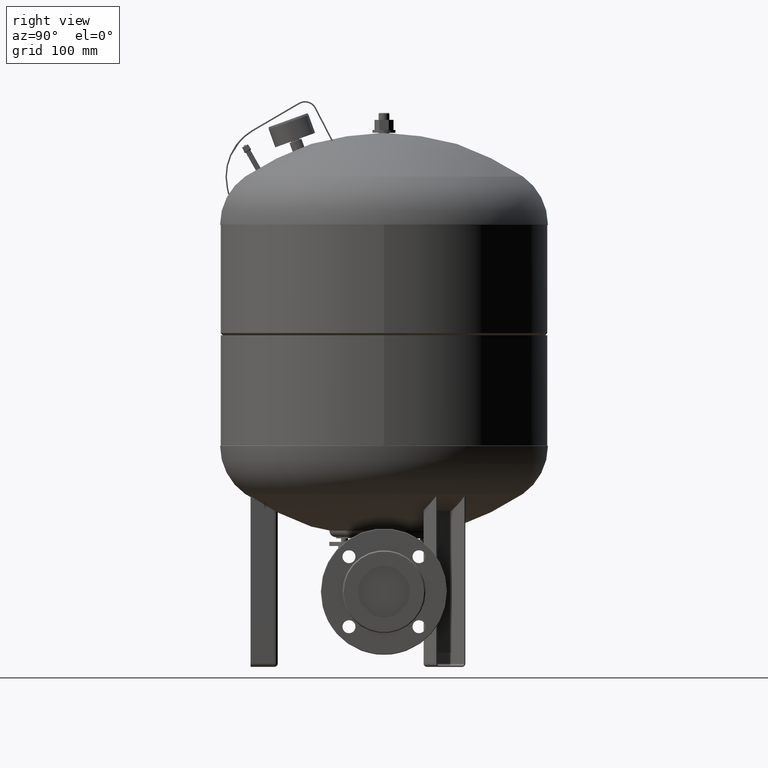
[diagram: clean part render]
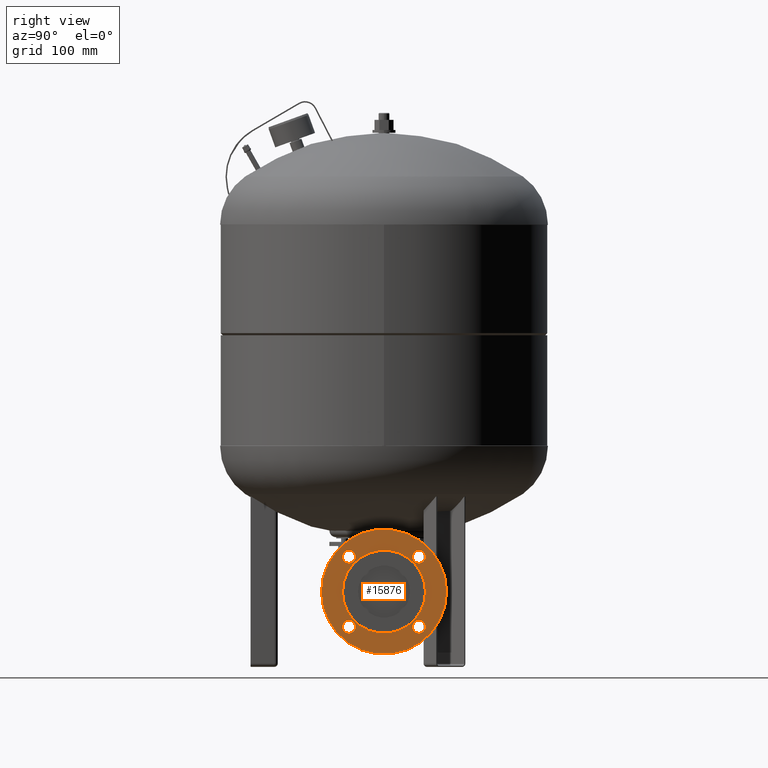
[diagram: same view with one face highlighted and labeled with its STEP entity id]
A machine part, right view. The second image highlights one B-rep face of the part: STEP entity #15876.
In plain terms, the highlighted planar face has unit normal (1, 0, 0).
Its self-contained STEP definition (entity closure, byte-faithful):
#15376=CARTESIAN_POINT('',(212.0,-60.732050807568875,110.0));
#15377=VERTEX_POINT('',#15376);
#15386=CARTESIAN_POINT('',(212.0,60.732050807568882,109.999999999999990));
#15387=VERTEX_POINT('',#15386);
#15388=CARTESIAN_POINT('',(212.0,-5.510729E-016,110.0));
#15389=DIRECTION('',(-1.0,0.0,0.0));
#15390=DIRECTION('',(0.0,-1.0,0.0));
#15391=AXIS2_PLACEMENT_3D('',#15388,#15389,#15390);
#15392=CIRCLE('',#15391,60.732050807568875);
#15393=EDGE_CURVE('',#15387,#15377,#15392,.T.);
#15420=CARTESIAN_POINT('',(212.000000000000030,-60.765241636024662,161.265241636024710));
#15421=VERTEX_POINT('',#15420);
#15437=CARTESIAN_POINT('',(212.000000000000030,-41.765241636024662,161.265241636024800));
#15438=VERTEX_POINT('',#15437);
#15445=CARTESIAN_POINT('',(212.000000000000030,-51.265241636024662,161.265241636024710));
#15446=DIRECTION('',(-1.0,0.0,0.0));
#15447=DIRECTION('',(0.0,-1.0,0.0));
#15448=AXIS2_PLACEMENT_3D('',#15445,#15446,#15447);
#15449=CIRCLE('',#15448,9.500000000000000);
#15450=EDGE_CURVE('',#15421,#15438,#15449,.T.);
#15462=CARTESIAN_POINT('',(212.0,-60.765241636024754,58.734758363975367));
#15463=VERTEX_POINT('',#15462);
#15479=CARTESIAN_POINT('',(212.0,-41.765241636024754,58.734758363975430));
#15480=VERTEX_POINT('',#15479);
#15487=CARTESIAN_POINT('',(212.0,-51.265241636024754,58.734758363975367));
#15488=DIRECTION('',(-1.0,0.0,0.0));
#15489=DIRECTION('',(0.0,-1.0,0.0));
#15490=AXIS2_PLACEMENT_3D('',#15487,#15488,#15489);
#15491=CIRCLE('',#15490,9.500000000000000);
#15492=EDGE_CURVE('',#15463,#15480,#15491,.T.);
#15504=CARTESIAN_POINT('',(211.999999999999970,41.765241636024690,58.734758363975303));
#15505=VERTEX_POINT('',#15504);
#15521=CARTESIAN_POINT('',(211.999999999999970,60.765241636024690,58.734758363975367));
#15522=VERTEX_POINT('',#15521);
#15529=CARTESIAN_POINT('',(211.999999999999970,51.265241636024690,58.734758363975303));
#15530=DIRECTION('',(-1.0,0.0,0.0));
#15531=DIRECTION('',(0.0,-1.0,0.0));
#15532=AXIS2_PLACEMENT_3D('',#15529,#15530,#15531);
#15533=CIRCLE('',#15532,9.500000000000000);
#15534=EDGE_CURVE('',#15505,#15522,#15533,.T.);
#15546=CARTESIAN_POINT('',(212.0,41.765241636024712,161.265241636024680));
#15547=VERTEX_POINT('',#15546);
#15563=CARTESIAN_POINT('',(212.0,60.765241636024712,161.265241636024740));
#15564=VERTEX_POINT('',#15563);
#15571=CARTESIAN_POINT('',(212.0,51.265241636024712,161.265241636024680));
#15572=DIRECTION('',(-1.0,0.0,0.0));
#15573=DIRECTION('',(0.0,-1.0,0.0));
#15574=AXIS2_PLACEMENT_3D('',#15571,#15572,#15573);
#15575=CIRCLE('',#15574,9.500000000000000);
#15576=EDGE_CURVE('',#15547,#15564,#15575,.T.);
#15588=CARTESIAN_POINT('',(211.999999999999970,91.500000000000000,110.0));
#15589=VERTEX_POINT('',#15588);
#15606=CARTESIAN_POINT('',(212.000000000000030,-91.500000000000000,110.0));
#15607=VERTEX_POINT('',#15606);
#15615=CARTESIAN_POINT('',(212.0,-5.510729E-016,110.0));
#15616=DIRECTION('',(-1.0,0.0,0.0));
#15617=DIRECTION('',(0.0,1.0,0.0));
#15618=AXIS2_PLACEMENT_3D('',#15615,#15616,#15617);
#15619=CIRCLE('',#15618,91.500000000000000);
#15620=EDGE_CURVE('',#15607,#15589,#15619,.T.);
#15805=CARTESIAN_POINT('',(212.0,-5.510729E-016,110.0));
#15806=DIRECTION('',(-1.0,0.0,0.0));
#15807=DIRECTION('',(0.0,1.0,0.0));
#15808=AXIS2_PLACEMENT_3D('',#15805,#15806,#15807);
#15809=CIRCLE('',#15808,91.500000000000000);
#15810=EDGE_CURVE('',#15589,#15607,#15809,.T.);
#15817=CARTESIAN_POINT('',(212.000000000000030,-92.500000000000000,110.0));
#15818=DIRECTION('',(1.0,0.0,0.0));
#15819=DIRECTION('',(0.0,-1.0,0.0));
#15820=AXIS2_PLACEMENT_3D('',#15817,#15818,#15819);
#15821=PLANE('',#15820);
#15822=ORIENTED_EDGE('',*,*,#15620,.F.);
#15823=ORIENTED_EDGE('',*,*,#15810,.F.);
#15824=EDGE_LOOP('',(#15822,#15823));
#15825=FACE_OUTER_BOUND('',#15824,.T.);
#15826=CARTESIAN_POINT('',(212.0,-5.510729E-016,110.0));
#15827=DIRECTION('',(-1.0,0.0,0.0));
#15828=DIRECTION('',(0.0,-1.0,0.0));
#15829=AXIS2_PLACEMENT_3D('',#15826,#15827,#15828);
#15830=CIRCLE('',#15829,60.732050807568875);
#15831=EDGE_CURVE('',#15377,#15387,#15830,.T.);
#15832=ORIENTED_EDGE('',*,*,#15831,.T.);
#15833=ORIENTED_EDGE('',*,*,#15393,.T.);
#15834=EDGE_LOOP('',(#15832,#15833));
#15835=FACE_BOUND('',#15834,.T.);
#15836=CARTESIAN_POINT('',(212.000000000000030,-51.265241636024662,161.265241636024710));
#15837=DIRECTION('',(-1.0,0.0,0.0));
#15838=DIRECTION('',(0.0,-1.0,0.0));
#15839=AXIS2_PLACEMENT_3D('',#15836,#15837,#15838);
#15840=CIRCLE('',#15839,9.500000000000000);
#15841=EDGE_CURVE('',#15438,#15421,#15840,.T.);
#15842=ORIENTED_EDGE('',*,*,#15841,.T.);
#15843=ORIENTED_EDGE('',*,*,#15450,.T.);
#15844=EDGE_LOOP('',(#15842,#15843));
#15845=FACE_BOUND('',#15844,.T.);
#15846=CARTESIAN_POINT('',(212.0,-51.265241636024754,58.734758363975367));
#15847=DIRECTION('',(-1.0,0.0,0.0));
#15848=DIRECTION('',(0.0,-1.0,0.0));
#15849=AXIS2_PLACEMENT_3D('',#15846,#15847,#15848);
#15850=CIRCLE('',#15849,9.500000000000000);
#15851=EDGE_CURVE('',#15480,#15463,#15850,.T.);
#15852=ORIENTED_EDGE('',*,*,#15851,.T.);
#15853=ORIENTED_EDGE('',*,*,#15492,.T.);
#15854=EDGE_LOOP('',(#15852,#15853));
#15855=FACE_BOUND('',#15854,.T.);
#15856=CARTESIAN_POINT('',(211.999999999999970,51.265241636024690,58.734758363975303));
#15857=DIRECTION('',(-1.0,0.0,0.0));
#15858=DIRECTION('',(0.0,-1.0,0.0));
#15859=AXIS2_PLACEMENT_3D('',#15856,#15857,#15858);
#15860=CIRCLE('',#15859,9.500000000000000);
#15861=EDGE_CURVE('',#15522,#15505,#15860,.T.);
#15862=ORIENTED_EDGE('',*,*,#15861,.T.);
#15863=ORIENTED_EDGE('',*,*,#15534,.T.);
#15864=EDGE_LOOP('',(#15862,#15863));
#15865=FACE_BOUND('',#15864,.T.);
#15866=CARTESIAN_POINT('',(212.0,51.265241636024712,161.265241636024680));
#15867=DIRECTION('',(-1.0,0.0,0.0));
#15868=DIRECTION('',(0.0,-1.0,0.0));
#15869=AXIS2_PLACEMENT_3D('',#15866,#15867,#15868);
#15870=CIRCLE('',#15869,9.500000000000000);
#15871=EDGE_CURVE('',#15564,#15547,#15870,.T.);
#15872=ORIENTED_EDGE('',*,*,#15871,.T.);
#15873=ORIENTED_EDGE('',*,*,#15576,.T.);
#15874=EDGE_LOOP('',(#15872,#15873));
#15875=FACE_BOUND('',#15874,.T.);
#15876=ADVANCED_FACE('',(#15825,#15835,#15845,#15855,#15865,#15875),#15821,.T.);